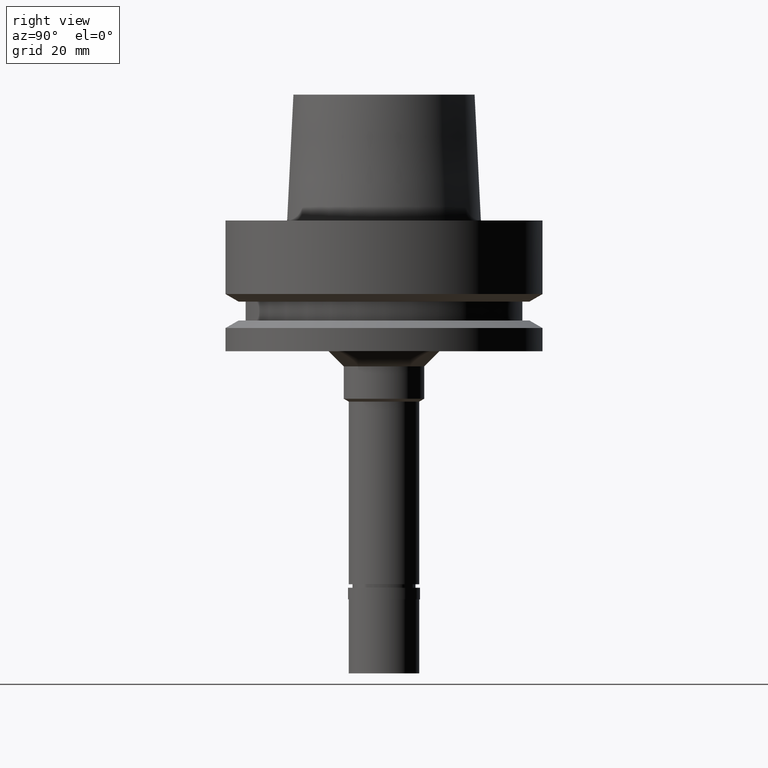
[diagram: clean part render]
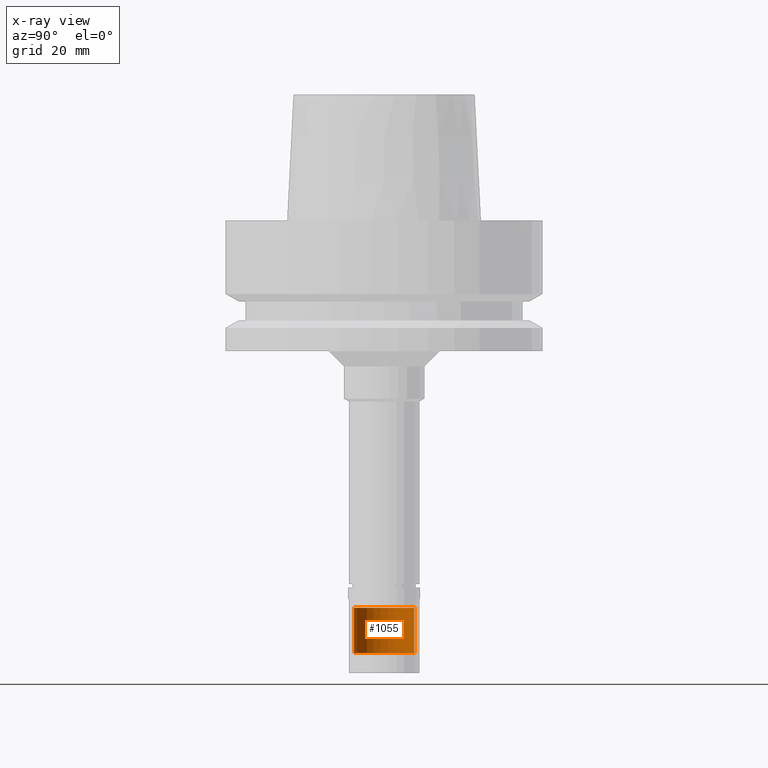
[diagram: x-ray — body ghosted, one internal face saturated and labeled with its STEP entity id]
A machine part, right view, then the same camera in x-ray: the body is ghosted and one INTERNAL B-rep face — a face not visible from any outside direction — is saturated and labeled: STEP entity #1055.
In plain terms, the highlighted cylindrical surface (edge-blend (fillet) strip) has radius 6 mm, axis along (0, 0, 1).
Its self-contained STEP definition (entity closure, byte-faithful):
#21 = CIRCLE ( 'NONE', #2239, 6.000000000000000000 ) ;
#22 = CARTESIAN_POINT ( 'NONE',  ( 0.0000000000000000000, 0.0000000000000000000, -77.00000000000000000 ) ) ;
#258 = ORIENTED_EDGE ( 'NONE', *, *, #838, .T. ) ;
#470 = CARTESIAN_POINT ( 'NONE',  ( 0.0000000000000000000, -6.000000000000000000, -77.00000000000000000 ) ) ;
#495 = DIRECTION ( 'NONE',  ( 0.0000000000000000000, 0.0000000000000000000, -1.000000000000000000 ) ) ;
#528 = CARTESIAN_POINT ( 'NONE',  ( 0.0000000000000000000, 0.0000000000000000000, -86.00000000000000000 ) ) ;
#611 = ORIENTED_EDGE ( 'NONE', *, *, #2300, .T. ) ;
#631 = FACE_OUTER_BOUND ( 'NONE', #1850, .T. ) ;
#838 = EDGE_CURVE ( 'NONE', #2694, #1518, #1292, .T. ) ;
#906 = LINE ( 'NONE', #1978, #937 ) ;
#937 = VECTOR ( 'NONE', #495, 1000.000000000000000 ) ;
#972 = ORIENTED_EDGE ( 'NONE', *, *, #1388, .T. ) ;
#1055 = ADVANCED_FACE ( 'NONE', ( #631 ), #2762, .T. ) ;
#1065 = CARTESIAN_POINT ( 'NONE',  ( 0.0000000000000000000, 0.0000000000000000000, -91.55000000000001137 ) ) ;
#1073 = CARTESIAN_POINT ( 'NONE',  ( 0.0000000000000000000, 6.000000000000000000, -86.00000000000000000 ) ) ;
#1107 = CARTESIAN_POINT ( 'NONE',  ( 0.0000000000000000000, -6.000000000000000000, -86.00000000000000000 ) ) ;
#1167 = VERTEX_POINT ( 'NONE', #470 ) ;
#1188 = VERTEX_POINT ( 'NONE', #1107 ) ;
#1292 = LINE ( 'NONE', #1933, #1896 ) ;
#1377 = AXIS2_PLACEMENT_3D ( 'NONE', #528, #1635, #2245 ) ;
#1388 = EDGE_CURVE ( 'NONE', #1518, #1188, #2274, .T. ) ;
#1518 = VERTEX_POINT ( 'NONE', #1073 ) ;
#1635 = DIRECTION ( 'NONE',  ( 0.0000000000000000000, 0.0000000000000000000, 1.000000000000000000 ) ) ;
#1681 = DIRECTION ( 'NONE',  ( 0.0000000000000000000, 1.000000000000000000, 0.0000000000000000000 ) ) ;
#1761 = DIRECTION ( 'NONE',  ( 0.0000000000000000000, 0.0000000000000000000, -1.000000000000000000 ) ) ;
#1786 = CARTESIAN_POINT ( 'NONE',  ( 0.0000000000000000000, 6.000000000000000000, -77.00000000000000000 ) ) ;
#1825 = EDGE_CURVE ( 'NONE', #1167, #1188, #906, .T. ) ;
#1850 = EDGE_LOOP ( 'NONE', ( #972, #2252, #611, #258 ) ) ;
#1896 = VECTOR ( 'NONE', #2788, 1000.000000000000000 ) ;
#1922 = DIRECTION ( 'NONE',  ( 0.0000000000000000000, 0.0000000000000000000, 1.000000000000000000 ) ) ;
#1933 = CARTESIAN_POINT ( 'NONE',  ( 0.0000000000000000000, 6.000000000000000000, -77.00000000000000000 ) ) ;
#1978 = CARTESIAN_POINT ( 'NONE',  ( 0.0000000000000000000, -6.000000000000000000, -77.00000000000000000 ) ) ;
#2239 = AXIS2_PLACEMENT_3D ( 'NONE', #22, #1761, #2766 ) ;
#2245 = DIRECTION ( 'NONE',  ( 0.0000000000000000000, 1.000000000000000000, 0.0000000000000000000 ) ) ;
#2252 = ORIENTED_EDGE ( 'NONE', *, *, #1825, .F. ) ;
#2274 = CIRCLE ( 'NONE', #1377, 6.000000000000000000 ) ;
#2300 = EDGE_CURVE ( 'NONE', #1167, #2694, #21, .T. ) ;
#2593 = AXIS2_PLACEMENT_3D ( 'NONE', #1065, #1922, #1681 ) ;
#2694 = VERTEX_POINT ( 'NONE', #1786 ) ;
#2762 = CYLINDRICAL_SURFACE ( 'NONE', #2593, 6.000000000000000000 ) ;
#2766 = DIRECTION ( 'NONE',  ( 0.0000000000000000000, -1.000000000000000000, 0.0000000000000000000 ) ) ;
#2788 = DIRECTION ( 'NONE',  ( 0.0000000000000000000, 0.0000000000000000000, -1.000000000000000000 ) ) ;